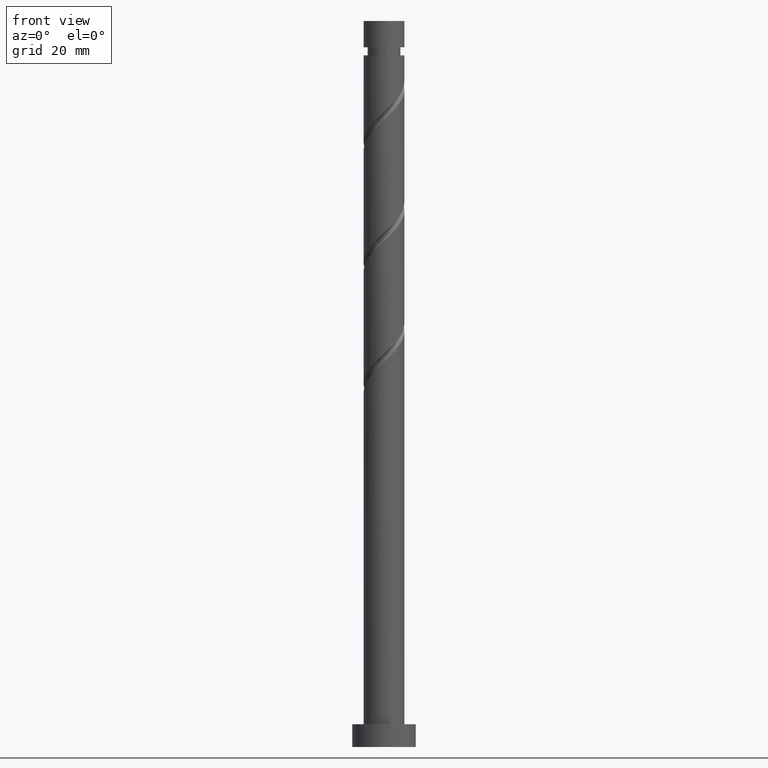
[diagram: clean part render]
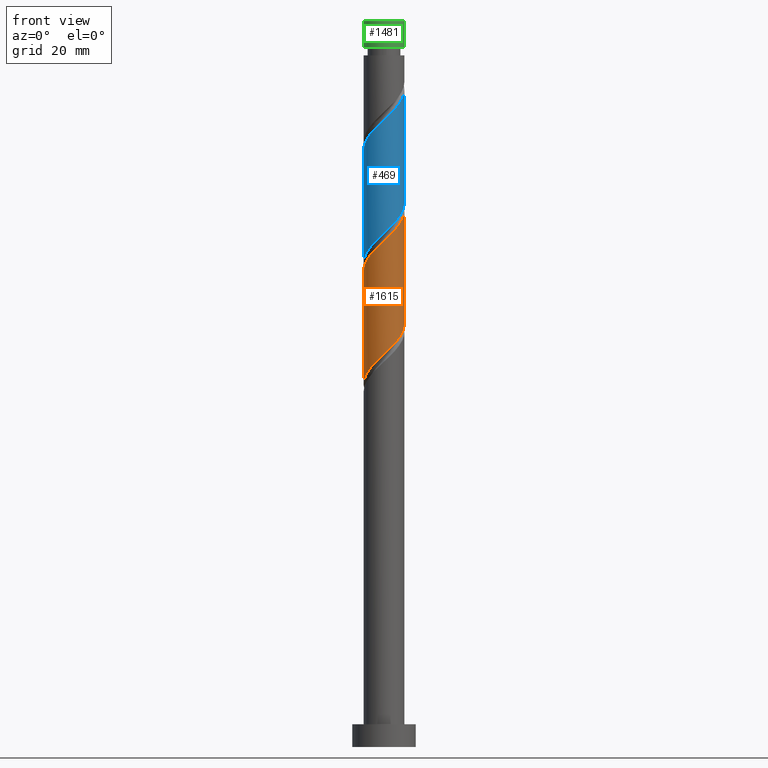
[diagram: same view with three faces highlighted in distinct colors, each labeled with its STEP entity id]
A machine part, front view with three faces highlighted in distinct colors.
Their STEP definitions:

[orange] entity #1615 — the highlighted cylindrical surface (edge-blend (fillet) strip) has radius 4.5 mm, axis along (-0, -0, -1).
#5 = CARTESIAN_POINT ( 'NONE',  ( 3.919276005899266391, -2.211170637825665253, 116.0642066314353542 ) ) ;
#51 = CARTESIAN_POINT ( 'NONE',  ( 1.630892978049455877, -4.194065819005344586, 88.18541875264749308 ) ) ;
#85 = AXIS2_PLACEMENT_3D ( 'NONE', #897, #1286, #1136 ) ;
#100 = CARTESIAN_POINT ( 'NONE',  ( 4.237194347937618844, -1.647663820002034596, 116.6702672374959633 ) ) ;
#123 = CARTESIAN_POINT ( 'NONE',  ( -1.027877349690239361, -4.428552829077685438, 110.6096611768899294 ) ) ;
#130 = CARTESIAN_POINT ( 'NONE',  ( -0.3832254664060564253, -4.483652332852976485, 111.2157217829504958 ) ) ;
#138 = EDGE_CURVE ( 'NONE', #404, #281, #654, .T. ) ;
#140 = DIRECTION ( 'NONE',  ( -0.000000000000000000, -0.000000000000000000, -1.000000000000000000 ) ) ;
#161 = CARTESIAN_POINT ( 'NONE',  ( -4.492553887271119706, -0.2587654729000729570, 105.1551157223444335 ) ) ;
#162 = VERTEX_POINT ( 'NONE', #1526 ) ;
#165 = FACE_OUTER_BOUND ( 'NONE', #1168, .T. ) ;
#171 = CARTESIAN_POINT ( 'NONE',  ( 4.455349029032739772, -0.9046972064924005963, 92.42784299507172818 ) ) ;
#180 = CARTESIAN_POINT ( 'NONE',  ( -4.383476546723549916, -1.017415040347141808, 80.91269147992021260 ) ) ;
#209 = CARTESIAN_POINT ( 'NONE',  ( 4.500000000000007994, 3.215716451251728954E-15, 118.2450551824375111 ) ) ;
#230 = CARTESIAN_POINT ( 'NONE',  ( -4.500000000000000888, 4.696441700897907453E-15, 79.94396414103928805 ) ) ;
#237 = CARTESIAN_POINT ( 'NONE',  ( 4.500000000000007994, -0.5153801732330518526, 117.7590952294661975 ) ) ;
#281 = VERTEX_POINT ( 'NONE', #209 ) ;
#295 = CARTESIAN_POINT ( 'NONE',  ( 4.492553887271115265, -0.2587654729000745113, 93.03390360113232305 ) ) ;
#301 = CARTESIAN_POINT ( 'NONE',  ( -4.019993431204690992, -2.123267486448499941, 106.9732975405263034 ) ) ;
#306 = CARTESIAN_POINT ( 'NONE',  ( -2.101655684935354707, -3.979075694426898124, 84.54905511628386705 ) ) ;
#316 = CARTESIAN_POINT ( 'NONE',  ( 1.027877349690237585, -4.428552829077676556, 87.57935814658689821 ) ) ;
#328 = EDGE_CURVE ( 'NONE', #404, #549, #1503, .T. ) ;
#383 = CARTESIAN_POINT ( 'NONE',  ( 0.2614264168781261777, -4.538751836628265757, 111.8217823890111333 ) ) ;
#404 = VERTEX_POINT ( 'NONE', #998 ) ;
#417 = CARTESIAN_POINT ( 'NONE',  ( -3.639477652303307220, -2.646545374329499101, 107.5793581465868556 ) ) ;
#436 = CARTESIAN_POINT ( 'NONE',  ( -0.8954886933959596007, -4.410000000000000142, 85.76117632840505678 ) ) ;
#444 = CARTESIAN_POINT ( 'NONE',  ( 4.500000000000000888, 5.510910596163089556E-16, 160.0000000000000000 ) ) ;
#466 = CARTESIAN_POINT ( 'NONE',  ( -1.529550969913791691, -4.281248163371740745, 85.15511572234443349 ) ) ;
#493 = CARTESIAN_POINT ( 'NONE',  ( 4.383476546723557021, -1.017415040347144251, 117.2763278435565582 ) ) ;
#501 = CARTESIAN_POINT ( 'NONE',  ( 3.137559031908918161, -3.225790340565678260, 114.8520854193141503 ) ) ;
#548 = CARTESIAN_POINT ( 'NONE',  ( -4.455349029032746877, -0.9046972064924001522, 105.7611763284050426 ) ) ;
#549 = VERTEX_POINT ( 'NONE', #230 ) ;
#624 = CARTESIAN_POINT ( 'NONE',  ( 0.8954886933959590456, -4.410000000000006359, 112.4278429950716998 ) ) ;
#642 = CARTESIAN_POINT ( 'NONE',  ( 4.500000000000007994, 3.215716451251728954E-15, 118.2450551824374969 ) ) ;
#654 =( BOUNDED_CURVE ( )  B_SPLINE_CURVE ( 2, ( #1433, #1455, #161, #548, #1580, #301, #417, #920, #1444, #693, #1553, #123, #130, #383, #624, #1245, #1237, #1117, #501, #999, #5, #100, #493, #237, #642 ),
 .UNSPECIFIED., .F., .T. ) 
 B_SPLINE_CURVE_WITH_KNOTS ( ( 3, 2, 2, 2, 2, 2, 2, 2, 2, 2, 2, 2, 3 ),
 ( 0.3045252162417511621, 0.3068181818181817677, 0.3181818181818182323, 0.3295454545454545858, 0.3409090909090909394, 0.3522727272727272929, 0.3636363636363636465, 0.3750000000000000000, 0.3863636363636363535, 0.3977272727272727071, 0.4090909090909090606, 0.4204545454545454142, 0.4295252162417513286 ),
 .UNSPECIFIED. ) 
 CURVE ( )  GEOMETRIC_REPRESENTATION_ITEM ( )  RATIONAL_B_SPLINE_CURVE ( ( 0.9061101570135603467, 0.9072237824201425660, 0.9090909090909201629, 0.8998376744372224012, 0.9090909090909201629, 0.8998376744372224012, 0.9090909090909201629, 0.8998376744372224012, 0.9090909090909201629, 0.8998376744372224012, 0.9090909090909201629, 0.8998376744372224012, 0.9090909090909201629, 0.8998376744372224012, 0.9090909090909201629, 0.8998376744372224012, 0.9090909090909201629, 0.8998376744372224012, 0.9090909090909201629, 0.8998376744372224012, 0.9090909090909201629, 0.8998376744372224012, 0.9090909090909201629, 0.9017048011079998870, 0.9061101570135604577 ) ) 
 REPRESENTATION_ITEM ( '' )  );
#687 = CARTESIAN_POINT ( 'NONE',  ( 2.233908606408674835, -3.959578808933013505, 88.79147935870810215 ) ) ;
#693 = CARTESIAN_POINT ( 'NONE',  ( -2.233908606408680608, -3.959578808933018834, 109.3975399647686970 ) ) ;
#706 = CARTESIAN_POINT ( 'NONE',  ( -4.500000000000000888, 4.696441700897907453E-15, 79.94396414103928805 ) ) ;
#715 = CARTESIAN_POINT ( 'NONE',  ( 0.3832254664060540383, -4.483652332852970268, 86.97329754052626072 ) ) ;
#723 = DIRECTION ( 'NONE',  ( -0.000000000000000000, -0.000000000000000000, -1.000000000000000000 ) ) ;
#758 = CARTESIAN_POINT ( 'NONE',  ( -4.500000000000000888, 0.000000000000000000, 160.0000000000000000 ) ) ;
#821 = CARTESIAN_POINT ( 'NONE',  ( -3.137559031908915497, -3.225790340565672043, 83.33693390416262048 ) ) ;
#831 = CARTESIAN_POINT ( 'NONE',  ( -0.2614264168781278430, -4.538751836628258651, 86.36723693446566585 ) ) ;
#839 = CARTESIAN_POINT ( 'NONE',  ( -2.673760399956917944, -3.676903225482057280, 83.94299451022324376 ) ) ;
#876 = ORIENTED_EDGE ( 'NONE', *, *, #1194, .F. ) ;
#897 = CARTESIAN_POINT ( 'NONE',  ( 0.000000000000000000, 0.000000000000000000, 160.0000000000000000 ) ) ;
#908 = VECTOR ( 'NONE', #723, 1000.000000000000000 ) ;
#920 = CARTESIAN_POINT ( 'NONE',  ( -3.258961873401923892, -3.169823262210500037, 108.1854187526474789 ) ) ;
#925 = CARTESIAN_POINT ( 'NONE',  ( -4.500000000000000888, -0.5153801732330500762, 80.42992409401057330 ) ) ;
#960 = CARTESIAN_POINT ( 'NONE',  ( -4.237194347937611738, -1.647663820002031265, 81.51875208598082168 ) ) ;
#998 = CARTESIAN_POINT ( 'NONE',  ( -4.500000000000007105, -3.395198299693686039E-15, 104.9117218491041683 ) ) ;
#999 = CARTESIAN_POINT ( 'NONE',  ( 3.601357663860915714, -2.774677455649293911, 115.4581460253747309 ) ) ;
#1057 = CARTESIAN_POINT ( 'NONE',  ( 4.237671230118710497, -1.513982346470448492, 91.82178238901113332 ) ) ;
#1067 = CARTESIAN_POINT ( 'NONE',  ( 4.500000000000000000, -0.1294898693572047454, 93.15519946965437725 ) ) ;
#1077 = CARTESIAN_POINT ( 'NONE',  ( 3.639477652303301891, -2.646545374329495992, 90.60966117688992938 ) ) ;
#1094 = CARTESIAN_POINT ( 'NONE',  ( 3.258961873401919895, -3.169823262210494708, 90.00360057082932030 ) ) ;
#1117 = CARTESIAN_POINT ( 'NONE',  ( 2.673760399956921940, -3.676903225482062165, 114.2460248132535412 ) ) ;
#1136 = DIRECTION ( 'NONE',  ( -1.000000000000000000, 0.000000000000000000, 0.000000000000000000 ) ) ;
#1140 = EDGE_CURVE ( 'NONE', #281, #162, #1319, .T. ) ;
#1168 = EDGE_LOOP ( 'NONE', ( #1562, #1522, #1651, #876 ) ) ;
#1194 = EDGE_CURVE ( 'NONE', #162, #549, #1283, .T. ) ;
#1237 = CARTESIAN_POINT ( 'NONE',  ( 2.101655684935356483, -3.979075694426905230, 113.6399642071929463 ) ) ;
#1245 = CARTESIAN_POINT ( 'NONE',  ( 1.529550969913792802, -4.281248163371749627, 113.0339036011323230 ) ) ;
#1283 =( BOUNDED_CURVE ( )  B_SPLINE_CURVE ( 2, ( #1585, #1067, #295, #171, #1057, #1595, #1077, #1094, #1468, #687, #51, #316, #715, #831, #436, #466, #306, #839, #821, #1332, #1341, #960, #180, #925, #706 ),
 .UNSPECIFIED., .F., .T. ) 
 B_SPLINE_CURVE_WITH_KNOTS ( ( 3, 2, 2, 2, 2, 2, 2, 2, 2, 2, 2, 2, 3 ),
 ( 0.8045252162417513286, 0.8068181818181817677, 0.8181818181818182323, 0.8295454545454545858, 0.8409090909090909394, 0.8522727272727272929, 0.8636363636363636465, 0.8750000000000000000, 0.8863636363636363535, 0.8977272727272727071, 0.9090909090909090606, 0.9204545454545454142, 0.9295252162417513286 ),
 .UNSPECIFIED. ) 
 CURVE ( )  GEOMETRIC_REPRESENTATION_ITEM ( )  RATIONAL_B_SPLINE_CURVE ( ( 0.9061101570135537964, 0.9072237824201360157, 0.9090909090909135015, 0.8998376744372158509, 0.9090909090909135015, 0.8998376744372158509, 0.9090909090909135015, 0.8998376744372158509, 0.9090909090909135015, 0.8998376744372158509, 0.9090909090909135015, 0.8998376744372158509, 0.9090909090909135015, 0.8998376744372158509, 0.9090909090909135015, 0.8998376744372158509, 0.9090909090909135015, 0.8998376744372158509, 0.9090909090909135015, 0.8998376744372158509, 0.9090909090909135015, 0.8998376744372158509, 0.9090909090909135015, 0.9017048011079933367, 0.9061101570135537964 ) ) 
 REPRESENTATION_ITEM ( '' )  );
#1286 = DIRECTION ( 'NONE',  ( -0.000000000000000000, -0.000000000000000000, -1.000000000000000000 ) ) ;
#1319 = LINE ( 'NONE', #444, #1440 ) ;
#1332 = CARTESIAN_POINT ( 'NONE',  ( -3.601357663860911273, -2.774677455649288138, 82.73087329810203983 ) ) ;
#1341 = CARTESIAN_POINT ( 'NONE',  ( -3.919276005899260618, -2.211170637825659036, 82.12481269204141654 ) ) ;
#1410 = CYLINDRICAL_SURFACE ( 'NONE', #85, 4.500000000000000888 ) ;
#1433 = CARTESIAN_POINT ( 'NONE',  ( -4.500000000000007105, -3.395198299693686039E-15, 104.9117218491041683 ) ) ;
#1440 = VECTOR ( 'NONE', #140, 1000.000000000000000 ) ;
#1444 = CARTESIAN_POINT ( 'NONE',  ( -2.746435239905300474, -3.564701035571758325, 108.7914793587080737 ) ) ;
#1455 = CARTESIAN_POINT ( 'NONE',  ( -4.500000000000007105, -0.1294898693571934489, 105.0338198538223793 ) ) ;
#1468 = CARTESIAN_POINT ( 'NONE',  ( 2.746435239905295589, -3.564701035571754328, 89.39753996476866860 ) ) ;
#1503 = LINE ( 'NONE', #758, #908 ) ;
#1522 = ORIENTED_EDGE ( 'NONE', *, *, #138, .F. ) ;
#1526 = CARTESIAN_POINT ( 'NONE',  ( 4.500000000000000888, -5.638721405218188662E-15, 93.27729747437261665 ) ) ;
#1553 = CARTESIAN_POINT ( 'NONE',  ( -1.630892978049460318, -4.194065819005350804, 110.0036005708292919 ) ) ;
#1562 = ORIENTED_EDGE ( 'NONE', *, *, #1140, .F. ) ;
#1580 = CARTESIAN_POINT ( 'NONE',  ( -4.237671230118719379, -1.513982346470448936, 106.3672369344656516 ) ) ;
#1585 = CARTESIAN_POINT ( 'NONE',  ( 4.500000000000000888, -5.638721405218188662E-15, 93.27729747437261665 ) ) ;
#1595 = CARTESIAN_POINT ( 'NONE',  ( 4.019993431204682999, -2.123267486448497277, 91.21572178295051003 ) ) ;
#1615 = ADVANCED_FACE ( 'NONE', ( #165 ), #1410, .T. ) ;
#1651 = ORIENTED_EDGE ( 'NONE', *, *, #328, .T. ) ;

[blue] entity #469 — the highlighted cylindrical surface (edge-blend (fillet) strip) has radius 4.5 mm, axis along (-0, -0, -1).
#48 = ORIENTED_EDGE ( 'NONE', *, *, #826, .F. ) ;
#64 = CARTESIAN_POINT ( 'NONE',  ( -4.237671230118719379, -1.513982346470448936, 133.0339036011322662 ) ) ;
#80 = CARTESIAN_POINT ( 'NONE',  ( 2.673760399956921940, -3.676903225482062165, 140.9126914799202552 ) ) ;
#102 = CARTESIAN_POINT ( 'NONE',  ( 1.630892978049455877, -4.194065819005344586, 114.8520854193141645 ) ) ;
#117 = CARTESIAN_POINT ( 'NONE',  ( 3.639477652303301891, -2.646545374329495992, 117.2763278435565582 ) ) ;
#157 = VECTOR ( 'NONE', #1153, 1000.000000000000000 ) ;
#189 = CARTESIAN_POINT ( 'NONE',  ( -4.500000000000007105, 2.871709575071311403E-15, 131.5783885157708255 ) ) ;
#190 = CARTESIAN_POINT ( 'NONE',  ( 2.101655684935356483, -3.979075694426905230, 140.3066308738595183 ) ) ;
#197 = CARTESIAN_POINT ( 'NONE',  ( -4.019993431204690992, -2.123267486448499941, 133.6399642071928895 ) ) ;
#206 = CARTESIAN_POINT ( 'NONE',  ( -3.919276005899260618, -2.211170637825659036, 108.7914793587080879 ) ) ;
#211 = CARTESIAN_POINT ( 'NONE',  ( 4.500000000000000888, 5.510910596163089556E-16, 160.0000000000000000 ) ) ;
#216 = DIRECTION ( 'NONE',  ( -0.000000000000000000, -0.000000000000000000, -1.000000000000000000 ) ) ;
#218 = CARTESIAN_POINT ( 'NONE',  ( 2.233908606408674835, -3.959578808933013505, 115.4581460253747878 ) ) ;
#238 = CARTESIAN_POINT ( 'NONE',  ( -4.492553887271119706, -0.2587654729000729570, 131.8217823890111049 ) ) ;
#289 = CARTESIAN_POINT ( 'NONE',  ( -4.500000000000007105, -0.1294898693571915893, 131.7004865204890791 ) ) ;
#313 = VERTEX_POINT ( 'NONE', #880 ) ;
#325 = CARTESIAN_POINT ( 'NONE',  ( 1.529550969913792802, -4.281248163371749627, 139.7005702677990371 ) ) ;
#332 = CARTESIAN_POINT ( 'NONE',  ( 4.383476546723557021, -1.017415040347144251, 143.9429945102232296 ) ) ;
#340 = CARTESIAN_POINT ( 'NONE',  ( 3.258961873401919895, -3.169823262210494708, 116.6702672374959775 ) ) ;
#354 = CARTESIAN_POINT ( 'NONE',  ( -4.383476546723549916, -1.017415040347141808, 107.5793581465868982 ) ) ;
#360 = CARTESIAN_POINT ( 'NONE',  ( 4.500000000000000888, -5.638721405218188662E-15, 119.9439641410392738 ) ) ;
#369 = CARTESIAN_POINT ( 'NONE',  ( -2.673760399956917944, -3.676903225482057280, 110.6096611768899152 ) ) ;
#447 = CARTESIAN_POINT ( 'NONE',  ( -0.3832254664060564253, -4.483652332852976485, 137.8823884496171388 ) ) ;
#455 = AXIS2_PLACEMENT_3D ( 'NONE', #1385, #216, #1375 ) ;
#469 = ADVANCED_FACE ( 'NONE', ( #984 ), #1509, .T. ) ;
#490 = CARTESIAN_POINT ( 'NONE',  ( 0.3832254664060540383, -4.483652332852970268, 113.6399642071929463 ) ) ;
#503 = CARTESIAN_POINT ( 'NONE',  ( 4.237671230118710497, -1.513982346470448492, 118.4884490556778047 ) ) ;
#559 = VECTOR ( 'NONE', #589, 1000.000000000000000 ) ;
#564 = CARTESIAN_POINT ( 'NONE',  ( -3.258961873401923892, -3.169823262210500037, 134.8520854193141361 ) ) ;
#573 = CARTESIAN_POINT ( 'NONE',  ( 4.500000000000008882, -0.5153801732330506313, 144.4257618961329115 ) ) ;
#589 = DIRECTION ( 'NONE',  ( -0.000000000000000000, -0.000000000000000000, -1.000000000000000000 ) ) ;
#590 = CARTESIAN_POINT ( 'NONE',  ( 4.237194347937618844, -1.647663820002034596, 143.3369339041626631 ) ) ;
#607 = EDGE_LOOP ( 'NONE', ( #48, #756, #1053, #1452 ) ) ;
#617 = EDGE_CURVE ( 'NONE', #658, #1591, #1301, .T. ) ;
#658 = VERTEX_POINT ( 'NONE', #1439 ) ;
#729 = CARTESIAN_POINT ( 'NONE',  ( -4.500000000000000888, -0.5153801732330500762, 107.0965907606772305 ) ) ;
#736 = CARTESIAN_POINT ( 'NONE',  ( -0.2614264168781278430, -4.538751836628258651, 113.0339036011323657 ) ) ;
#756 = ORIENTED_EDGE ( 'NONE', *, *, #1171, .F. ) ;
#826 = EDGE_CURVE ( 'NONE', #313, #1138, #1513, .T. ) ;
#847 = CARTESIAN_POINT ( 'NONE',  ( -0.8954886933959596007, -4.410000000000000142, 112.4278429950717140 ) ) ;
#853 = CARTESIAN_POINT ( 'NONE',  ( 4.455349029032739772, -0.9046972064924005963, 119.0945096617384138 ) ) ;
#865 = CARTESIAN_POINT ( 'NONE',  ( 1.027877349690237585, -4.428552829077676556, 114.2460248132535554 ) ) ;
#873 = CARTESIAN_POINT ( 'NONE',  ( -3.601357663860911273, -2.774677455649288138, 109.3975399647687112 ) ) ;
#880 = CARTESIAN_POINT ( 'NONE',  ( 4.500000000000007994, 3.215716451251728954E-15, 144.9117218491041967 ) ) ;
#888 = CARTESIAN_POINT ( 'NONE',  ( -4.500000000000000888, 4.696441700897907453E-15, 106.6106308077059452 ) ) ;
#924 = CARTESIAN_POINT ( 'NONE',  ( -4.500000000000000888, 0.000000000000000000, 160.0000000000000000 ) ) ;
#943 = CARTESIAN_POINT ( 'NONE',  ( 3.137559031908918161, -3.225790340565678260, 141.5187520859807648 ) ) ;
#953 = CARTESIAN_POINT ( 'NONE',  ( 0.2614264168781261777, -4.538751836628265757, 138.4884490556777621 ) ) ;
#984 = FACE_OUTER_BOUND ( 'NONE', #607, .T. ) ;
#985 = CARTESIAN_POINT ( 'NONE',  ( -3.137559031908915497, -3.225790340565672043, 110.0036005708293061 ) ) ;
#1053 = ORIENTED_EDGE ( 'NONE', *, *, #617, .T. ) ;
#1138 = VERTEX_POINT ( 'NONE', #1458 ) ;
#1153 = DIRECTION ( 'NONE',  ( -0.000000000000000000, -0.000000000000000000, -1.000000000000000000 ) ) ;
#1171 = EDGE_CURVE ( 'NONE', #658, #313, #1516, .T. ) ;
#1188 = CARTESIAN_POINT ( 'NONE',  ( 3.919276005899266391, -2.211170637825665253, 142.7308732981019830 ) ) ;
#1218 = CARTESIAN_POINT ( 'NONE',  ( -2.746435239905300474, -3.564701035571758325, 135.4581460253747309 ) ) ;
#1233 = CARTESIAN_POINT ( 'NONE',  ( -4.500000000000000888, 4.696441700897907453E-15, 106.6106308077059452 ) ) ;
#1248 = CARTESIAN_POINT ( 'NONE',  ( 4.500000000000000000, -0.1294898693572047454, 119.8218661363210487 ) ) ;
#1254 = CARTESIAN_POINT ( 'NONE',  ( 4.492553887271115265, -0.2587654729000745113, 119.7005702677990087 ) ) ;
#1301 = LINE ( 'NONE', #924, #559 ) ;
#1310 = CARTESIAN_POINT ( 'NONE',  ( 0.8954886933959590456, -4.410000000000006359, 139.0945096617383285 ) ) ;
#1311 = EDGE_CURVE ( 'NONE', #1138, #1591, #1470, .T. ) ;
#1321 = CARTESIAN_POINT ( 'NONE',  ( 3.601357663860915714, -2.774677455649293911, 142.1248126920414165 ) ) ;
#1361 = CARTESIAN_POINT ( 'NONE',  ( -2.101655684935354707, -3.979075694426898124, 111.2157217829505100 ) ) ;
#1375 = DIRECTION ( 'NONE',  ( -1.000000000000000000, 0.000000000000000000, 0.000000000000000000 ) ) ;
#1376 = CARTESIAN_POINT ( 'NONE',  ( -4.455349029032746877, -0.9046972064924001522, 132.4278429950717282 ) ) ;
#1385 = CARTESIAN_POINT ( 'NONE',  ( 0.000000000000000000, 0.000000000000000000, 160.0000000000000000 ) ) ;
#1439 = CARTESIAN_POINT ( 'NONE',  ( -4.500000000000007105, 2.871709575071311403E-15, 131.5783885157708255 ) ) ;
#1450 = CARTESIAN_POINT ( 'NONE',  ( 4.500000000000007994, 3.215716451251728954E-15, 144.9117218491042252 ) ) ;
#1452 = ORIENTED_EDGE ( 'NONE', *, *, #1311, .F. ) ;
#1458 = CARTESIAN_POINT ( 'NONE',  ( 4.500000000000000888, -5.638721405218188662E-15, 119.9439641410392738 ) ) ;
#1459 = CARTESIAN_POINT ( 'NONE',  ( -2.233908606408680608, -3.959578808933018834, 136.0642066314353542 ) ) ;
#1470 =( BOUNDED_CURVE ( )  B_SPLINE_CURVE ( 2, ( #360, #1248, #1254, #853, #503, #1491, #117, #340, #1501, #218, #102, #865, #490, #736, #847, #1529, #1361, #369, #985, #873, #206, #1510, #354, #729, #1233 ),
 .UNSPECIFIED., .F., .T. ) 
 B_SPLINE_CURVE_WITH_KNOTS ( ( 3, 2, 2, 2, 2, 2, 2, 2, 2, 2, 2, 2, 3 ),
 ( 0.5545252162417513286, 0.5568181818181817677, 0.5681818181818182323, 0.5795454545454545858, 0.5909090909090909394, 0.6022727272727272929, 0.6136363636363636465, 0.6250000000000000000, 0.6363636363636363535, 0.6477272727272727071, 0.6590909090909090606, 0.6704545454545454142, 0.6795252162417513286 ),
 .UNSPECIFIED. ) 
 CURVE ( )  GEOMETRIC_REPRESENTATION_ITEM ( )  RATIONAL_B_SPLINE_CURVE ( ( 0.9061101570135537964, 0.9072237824201360157, 0.9090909090909135015, 0.8998376744372158509, 0.9090909090909135015, 0.8998376744372158509, 0.9090909090909135015, 0.8998376744372158509, 0.9090909090909135015, 0.8998376744372158509, 0.9090909090909135015, 0.8998376744372158509, 0.9090909090909135015, 0.8998376744372158509, 0.9090909090909135015, 0.8998376744372158509, 0.9090909090909135015, 0.8998376744372158509, 0.9090909090909135015, 0.8998376744372158509, 0.9090909090909135015, 0.8998376744372158509, 0.9090909090909135015, 0.9017048011079933367, 0.9061101570135537964 ) ) 
 REPRESENTATION_ITEM ( '' )  );
#1477 = CARTESIAN_POINT ( 'NONE',  ( -3.639477652303307220, -2.646545374329499101, 134.2460248132535128 ) ) ;
#1485 = CARTESIAN_POINT ( 'NONE',  ( -1.630892978049460318, -4.194065819005350804, 136.6702672374959775 ) ) ;
#1491 = CARTESIAN_POINT ( 'NONE',  ( 4.019993431204682999, -2.123267486448497277, 117.8823884496171956 ) ) ;
#1501 = CARTESIAN_POINT ( 'NONE',  ( 2.746435239905295589, -3.564701035571754328, 116.0642066314353542 ) ) ;
#1509 = CYLINDRICAL_SURFACE ( 'NONE', #455, 4.500000000000000888 ) ;
#1510 = CARTESIAN_POINT ( 'NONE',  ( -4.237194347937611738, -1.647663820002031265, 108.1854187526474931 ) ) ;
#1513 = LINE ( 'NONE', #211, #157 ) ;
#1516 =( BOUNDED_CURVE ( )  B_SPLINE_CURVE ( 2, ( #189, #289, #238, #1376, #64, #197, #1477, #564, #1218, #1459, #1485, #1605, #447, #953, #1310, #325, #190, #80, #943, #1321, #1188, #590, #332, #573, #1450 ),
 .UNSPECIFIED., .F., .T. ) 
 B_SPLINE_CURVE_WITH_KNOTS ( ( 3, 2, 2, 2, 2, 2, 2, 2, 2, 2, 2, 2, 3 ),
 ( 0.5545252162417512176, 0.5568181818181818787, 0.5681818181818181213, 0.5795454545454545858, 0.5909090909090908283, 0.6022727272727272929, 0.6136363636363636465, 0.6250000000000000000, 0.6363636363636363535, 0.6477272727272727071, 0.6590909090909091717, 0.6704545454545454142, 0.6795252162417514397 ),
 .UNSPECIFIED. ) 
 CURVE ( )  GEOMETRIC_REPRESENTATION_ITEM ( )  RATIONAL_B_SPLINE_CURVE ( ( 0.9061101570135602357, 0.9072237824201424550, 0.9090909090909201629, 0.8998376744372224012, 0.9090909090909201629, 0.8998376744372224012, 0.9090909090909201629, 0.8998376744372224012, 0.9090909090909201629, 0.8998376744372224012, 0.9090909090909201629, 0.8998376744372224012, 0.9090909090909201629, 0.8998376744372224012, 0.9090909090909201629, 0.8998376744372224012, 0.9090909090909201629, 0.8998376744372224012, 0.9090909090909201629, 0.8998376744372224012, 0.9090909090909201629, 0.8998376744372224012, 0.9090909090909201629, 0.9017048011079997760, 0.9061101570135605687 ) ) 
 REPRESENTATION_ITEM ( '' )  );
#1529 = CARTESIAN_POINT ( 'NONE',  ( -1.529550969913791691, -4.281248163371740745, 111.8217823890111333 ) ) ;
#1591 = VERTEX_POINT ( 'NONE', #888 ) ;
#1605 = CARTESIAN_POINT ( 'NONE',  ( -1.027877349690239361, -4.428552829077685438, 137.2763278435565724 ) ) ;

[green] entity #1481 — the highlighted cylindrical surface (edge-blend (fillet) strip) has radius 4.5 mm, axis along (-0, -0, -1).
#104 = LINE ( 'NONE', #1631, #1021 ) ;
#107 = AXIS2_PLACEMENT_3D ( 'NONE', #1541, #1566, #1437 ) ;
#128 = VERTEX_POINT ( 'NONE', #1571 ) ;
#192 = ORIENTED_EDGE ( 'NONE', *, *, #1217, .F. ) ;
#259 = EDGE_CURVE ( 'NONE', #128, #1335, #104, .T. ) ;
#324 = DIRECTION ( 'NONE',  ( 0.000000000000000000, 0.000000000000000000, 1.000000000000000000 ) ) ;
#342 = AXIS2_PLACEMENT_3D ( 'NONE', #813, #698, #1210 ) ;
#381 = VERTEX_POINT ( 'NONE', #989 ) ;
#580 = DIRECTION ( 'NONE',  ( 1.000000000000000000, 0.000000000000000000, 0.000000000000000000 ) ) ;
#604 = CARTESIAN_POINT ( 'NONE',  ( 4.500000000000000888, 5.510910596163089556E-16, 160.0000000000000000 ) ) ;
#629 = EDGE_CURVE ( 'NONE', #128, #1353, #976, .T. ) ;
#698 = DIRECTION ( 'NONE',  ( -0.000000000000000000, -0.000000000000000000, -1.000000000000000000 ) ) ;
#708 = ORIENTED_EDGE ( 'NONE', *, *, #629, .F. ) ;
#744 = VECTOR ( 'NONE', #931, 1000.000000000000000 ) ;
#791 = CARTESIAN_POINT ( 'NONE',  ( 4.500000000000000888, 5.510910596163089556E-16, 160.0000000000000000 ) ) ;
#813 = CARTESIAN_POINT ( 'NONE',  ( 0.000000000000000000, 0.000000000000000000, 154.2278429950717111 ) ) ;
#859 = CARTESIAN_POINT ( 'NONE',  ( -4.499999999999994671, 0.000000000000000000, 154.2278429950717111 ) ) ;
#921 = ORIENTED_EDGE ( 'NONE', *, *, #259, .T. ) ;
#927 = EDGE_LOOP ( 'NONE', ( #1482, #708, #921, #192 ) ) ;
#931 = DIRECTION ( 'NONE',  ( -0.000000000000000000, -0.000000000000000000, -1.000000000000000000 ) ) ;
#976 = CIRCLE ( 'NONE', #1498, 4.500000000000000888 ) ;
#989 = CARTESIAN_POINT ( 'NONE',  ( 4.499999999999994671, 5.510910596163086597E-16, 154.2278429950717111 ) ) ;
#1021 = VECTOR ( 'NONE', #1406, 1000.000000000000000 ) ;
#1032 = CIRCLE ( 'NONE', #342, 4.499999999999994671 ) ;
#1119 = EDGE_CURVE ( 'NONE', #1353, #381, #1552, .T. ) ;
#1210 = DIRECTION ( 'NONE',  ( -1.000000000000000000, 0.000000000000000000, 0.000000000000000000 ) ) ;
#1217 = EDGE_CURVE ( 'NONE', #381, #1335, #1032, .T. ) ;
#1294 = FACE_OUTER_BOUND ( 'NONE', #927, .T. ) ;
#1335 = VERTEX_POINT ( 'NONE', #859 ) ;
#1353 = VERTEX_POINT ( 'NONE', #604 ) ;
#1406 = DIRECTION ( 'NONE',  ( -0.000000000000000000, -0.000000000000000000, -1.000000000000000000 ) ) ;
#1437 = DIRECTION ( 'NONE',  ( -1.000000000000000000, 0.000000000000000000, 0.000000000000000000 ) ) ;
#1476 = CARTESIAN_POINT ( 'NONE',  ( 0.000000000000000000, 0.000000000000000000, 160.0000000000000000 ) ) ;
#1481 = ADVANCED_FACE ( 'NONE', ( #1294 ), #1575, .T. ) ;
#1482 = ORIENTED_EDGE ( 'NONE', *, *, #1119, .F. ) ;
#1498 = AXIS2_PLACEMENT_3D ( 'NONE', #1476, #324, #580 ) ;
#1541 = CARTESIAN_POINT ( 'NONE',  ( 0.000000000000000000, 0.000000000000000000, 160.0000000000000000 ) ) ;
#1552 = LINE ( 'NONE', #791, #744 ) ;
#1566 = DIRECTION ( 'NONE',  ( -0.000000000000000000, -0.000000000000000000, -1.000000000000000000 ) ) ;
#1571 = CARTESIAN_POINT ( 'NONE',  ( -4.500000000000000888, 0.000000000000000000, 160.0000000000000000 ) ) ;
#1575 = CYLINDRICAL_SURFACE ( 'NONE', #107, 4.500000000000000888 ) ;
#1631 = CARTESIAN_POINT ( 'NONE',  ( -4.500000000000000888, 0.000000000000000000, 160.0000000000000000 ) ) ;